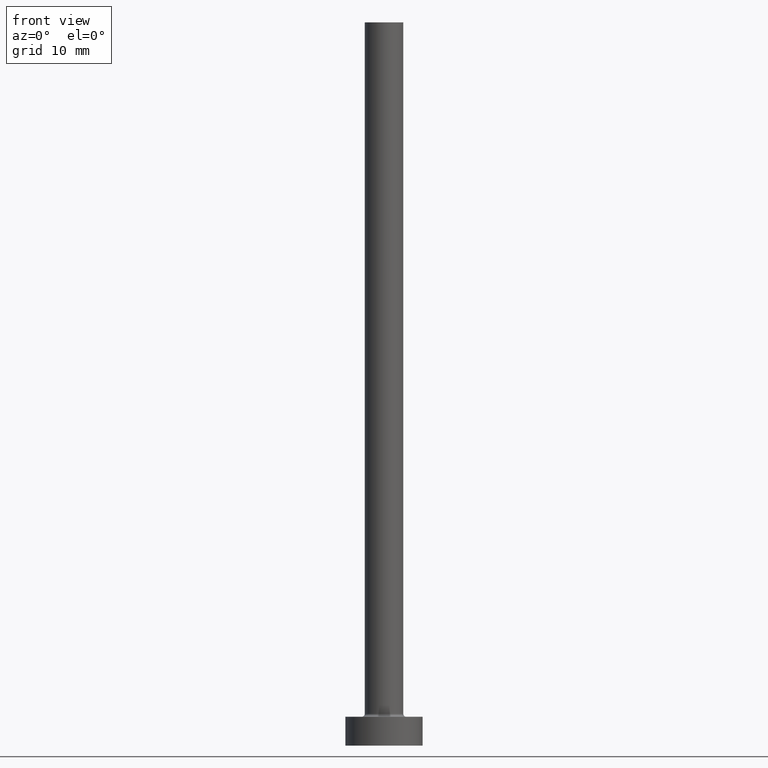
[diagram: clean part render]
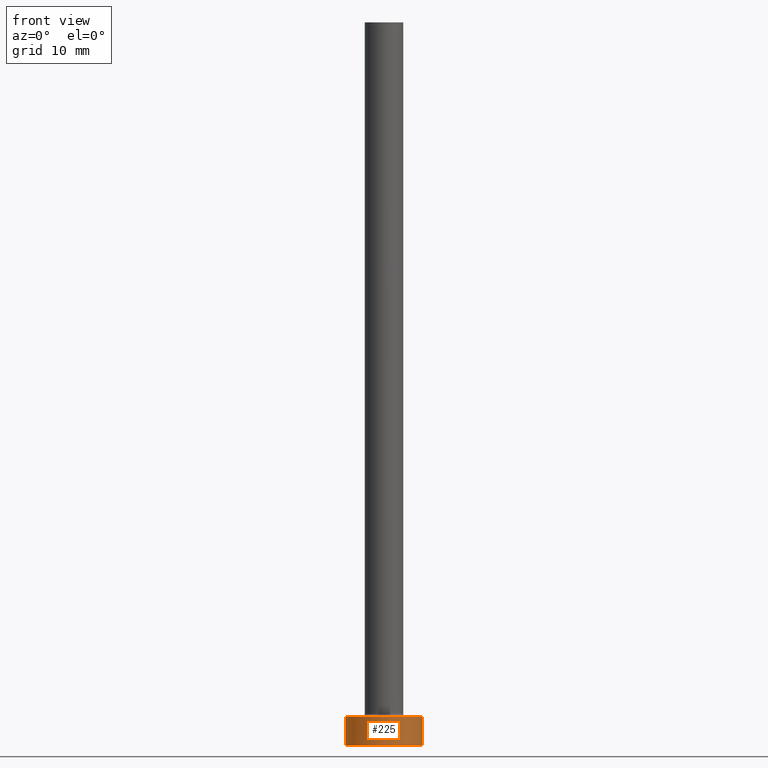
[diagram: same view with one face highlighted and labeled with its STEP entity id]
A machine part, front view. The second image highlights one B-rep face of the part: STEP entity #225.
In plain terms, the highlighted cylindrical surface (partial cylindrical patch) has radius 4 mm, axis along (-0, -0, -1).
Its self-contained STEP definition (entity closure, byte-faithful):
#4 = CARTESIAN_POINT ( 'NONE',  ( 4.000000000000000000, 4.898587196589412829E-16, 3.000000000000000000 ) ) ;
#5 = DIRECTION ( 'NONE',  ( -0.000000000000000000, -0.000000000000000000, -1.000000000000000000 ) ) ;
#11 = CIRCLE ( 'NONE', #63, 4.000000000000000000 ) ;
#24 = VERTEX_POINT ( 'NONE', #308 ) ;
#35 = CYLINDRICAL_SURFACE ( 'NONE', #344, 4.000000000000000000 ) ;
#40 = FACE_OUTER_BOUND ( 'NONE', #286, .T. ) ;
#42 = VERTEX_POINT ( 'NONE', #257 ) ;
#63 = AXIS2_PLACEMENT_3D ( 'NONE', #358, #459, #132 ) ;
#65 = DIRECTION ( 'NONE',  ( -0.000000000000000000, -0.000000000000000000, -1.000000000000000000 ) ) ;
#67 = ORIENTED_EDGE ( 'NONE', *, *, #272, .F. ) ;
#92 = CARTESIAN_POINT ( 'NONE',  ( 4.000000000000000000, 4.898587196589412829E-16, 0.000000000000000000 ) ) ;
#125 = AXIS2_PLACEMENT_3D ( 'NONE', #320, #173, #211 ) ;
#132 = DIRECTION ( 'NONE',  ( 1.000000000000000000, 0.000000000000000000, 0.000000000000000000 ) ) ;
#140 = EDGE_CURVE ( 'NONE', #239, #209, #288, .T. ) ;
#171 = CARTESIAN_POINT ( 'NONE',  ( 0.000000000000000000, 0.000000000000000000, 3.000000000000000000 ) ) ;
#173 = DIRECTION ( 'NONE',  ( 0.000000000000000000, 0.000000000000000000, 1.000000000000000000 ) ) ;
#189 = ORIENTED_EDGE ( 'NONE', *, *, #140, .F. ) ;
#209 = VERTEX_POINT ( 'NONE', #92 ) ;
#211 = DIRECTION ( 'NONE',  ( 1.000000000000000000, 0.000000000000000000, 0.000000000000000000 ) ) ;
#225 = ADVANCED_FACE ( 'NONE', ( #40 ), #35, .T. ) ;
#239 = VERTEX_POINT ( 'NONE', #4 ) ;
#252 = LINE ( 'NONE', #430, #295 ) ;
#257 = CARTESIAN_POINT ( 'NONE',  ( -4.000000000000000000, 0.000000000000000000, 3.000000000000000000 ) ) ;
#272 = EDGE_CURVE ( 'NONE', #42, #239, #282, .T. ) ;
#282 = CIRCLE ( 'NONE', #125, 4.000000000000000000 ) ;
#286 = EDGE_LOOP ( 'NONE', ( #189, #67, #332, #453 ) ) ;
#288 = LINE ( 'NONE', #291, #436 ) ;
#291 = CARTESIAN_POINT ( 'NONE',  ( 4.000000000000000000, 4.898587196589412829E-16, 3.000000000000000000 ) ) ;
#295 = VECTOR ( 'NONE', #65, 1000.000000000000000 ) ;
#304 = EDGE_CURVE ( 'NONE', #24, #209, #11, .T. ) ;
#308 = CARTESIAN_POINT ( 'NONE',  ( -4.000000000000000000, 0.000000000000000000, 0.000000000000000000 ) ) ;
#320 = CARTESIAN_POINT ( 'NONE',  ( 0.000000000000000000, 0.000000000000000000, 3.000000000000000000 ) ) ;
#328 = DIRECTION ( 'NONE',  ( -0.000000000000000000, -0.000000000000000000, -1.000000000000000000 ) ) ;
#332 = ORIENTED_EDGE ( 'NONE', *, *, #455, .T. ) ;
#344 = AXIS2_PLACEMENT_3D ( 'NONE', #171, #328, #458 ) ;
#358 = CARTESIAN_POINT ( 'NONE',  ( 0.000000000000000000, 0.000000000000000000, 0.000000000000000000 ) ) ;
#430 = CARTESIAN_POINT ( 'NONE',  ( -4.000000000000000000, 0.000000000000000000, 3.000000000000000000 ) ) ;
#436 = VECTOR ( 'NONE', #5, 1000.000000000000000 ) ;
#453 = ORIENTED_EDGE ( 'NONE', *, *, #304, .T. ) ;
#455 = EDGE_CURVE ( 'NONE', #42, #24, #252, .T. ) ;
#458 = DIRECTION ( 'NONE',  ( -1.000000000000000000, 0.000000000000000000, 0.000000000000000000 ) ) ;
#459 = DIRECTION ( 'NONE',  ( 0.000000000000000000, 0.000000000000000000, 1.000000000000000000 ) ) ;